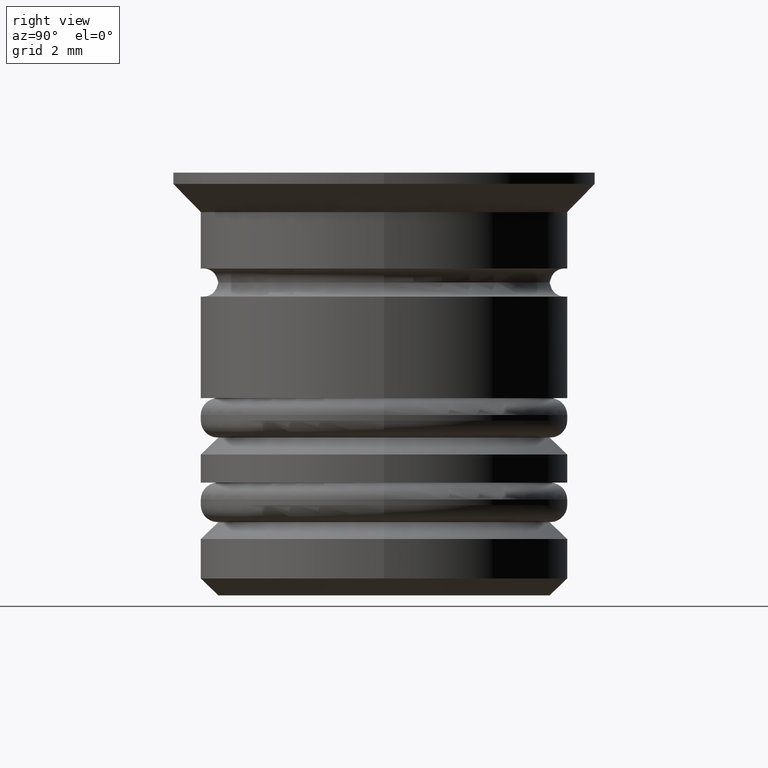
[diagram: clean part render]
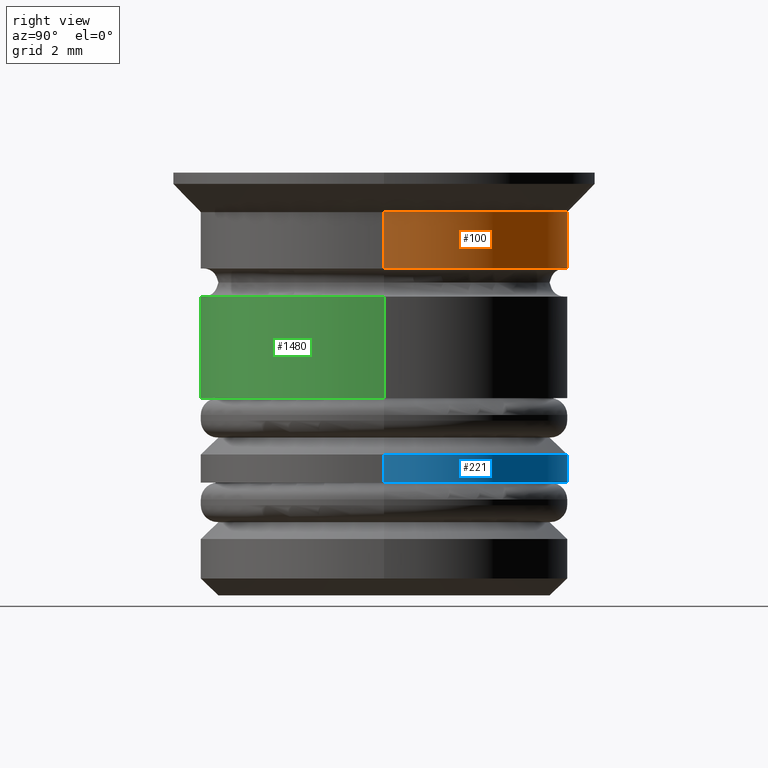
[diagram: same view with three faces highlighted in distinct colors, each labeled with its STEP entity id]
A machine part, right view with three faces highlighted in distinct colors.
Their STEP definitions:

[orange] entity #100 — the highlighted cylindrical surface (partial cylindrical patch) has radius 3.25 mm, axis along (-0, -0, 1).
#8 = DIRECTION ( 'NONE',  ( 1.000000000000000000, 0.000000000000000000, 0.000000000000000000 ) ) ;
#10 = VERTEX_POINT ( 'NONE', #1406 ) ;
#63 = CARTESIAN_POINT ( 'NONE',  ( 3.249999999999999112, 0.000000000000000000, 0.000000000000000000 ) ) ;
#84 = AXIS2_PLACEMENT_3D ( 'NONE', #1748, #1328, #194 ) ;
#85 = ORIENTED_EDGE ( 'NONE', *, *, #1826, .F. ) ;
#100 = ADVANCED_FACE ( 'NONE', ( #231 ), #200, .T. ) ;
#137 = CARTESIAN_POINT ( 'NONE',  ( -3.249999999999999112, 3.980102097228896752E-16, 0.000000000000000000 ) ) ;
#141 = DIRECTION ( 'NONE',  ( -0.000000000000000000, -0.000000000000000000, 1.000000000000000000 ) ) ;
#194 = DIRECTION ( 'NONE',  ( 1.000000000000000000, 0.000000000000000000, 0.000000000000000000 ) ) ;
#196 = LINE ( 'NONE', #63, #750 ) ;
#200 = CYLINDRICAL_SURFACE ( 'NONE', #84, 3.249999999999999112 ) ;
#231 = FACE_OUTER_BOUND ( 'NONE', #1262, .T. ) ;
#403 = CARTESIAN_POINT ( 'NONE',  ( 3.249999999999999112, 0.000000000000000000, -0.6999999999999999556 ) ) ;
#498 = CARTESIAN_POINT ( 'NONE',  ( 0.000000000000000000, 0.000000000000000000, -0.6999999999999999556 ) ) ;
#519 = DIRECTION ( 'NONE',  ( 1.000000000000000000, 0.000000000000000000, 0.000000000000000000 ) ) ;
#537 = VECTOR ( 'NONE', #701, 1000.000000000000000 ) ;
#619 = DIRECTION ( 'NONE',  ( -0.000000000000000000, -0.000000000000000000, 1.000000000000000000 ) ) ;
#643 = CARTESIAN_POINT ( 'NONE',  ( 3.249999999999999112, 0.000000000000000000, -1.700000000000000178 ) ) ;
#701 = DIRECTION ( 'NONE',  ( -0.000000000000000000, -0.000000000000000000, 1.000000000000000000 ) ) ;
#736 = ORIENTED_EDGE ( 'NONE', *, *, #1693, .T. ) ;
#750 = VECTOR ( 'NONE', #619, 1000.000000000000000 ) ;
#838 = CIRCLE ( 'NONE', #1207, 3.249999999999999112 ) ;
#877 = VERTEX_POINT ( 'NONE', #403 ) ;
#944 = CARTESIAN_POINT ( 'NONE',  ( -3.249999999999999112, 3.980102097228896752E-16, -0.6999999999999999556 ) ) ;
#1035 = EDGE_CURVE ( 'NONE', #1568, #10, #838, .T. ) ;
#1079 = DIRECTION ( 'NONE',  ( -0.000000000000000000, -0.000000000000000000, 1.000000000000000000 ) ) ;
#1207 = AXIS2_PLACEMENT_3D ( 'NONE', #1535, #141, #8 ) ;
#1262 = EDGE_LOOP ( 'NONE', ( #1750, #736, #1531, #85 ) ) ;
#1284 = EDGE_CURVE ( 'NONE', #877, #1593, #1794, .T. ) ;
#1328 = DIRECTION ( 'NONE',  ( -0.000000000000000000, -0.000000000000000000, 1.000000000000000000 ) ) ;
#1406 = CARTESIAN_POINT ( 'NONE',  ( -3.249999999999999112, 3.980102097228896752E-16, -1.700000000000000178 ) ) ;
#1531 = ORIENTED_EDGE ( 'NONE', *, *, #1284, .F. ) ;
#1535 = CARTESIAN_POINT ( 'NONE',  ( 0.000000000000000000, 0.000000000000000000, -1.700000000000000178 ) ) ;
#1568 = VERTEX_POINT ( 'NONE', #643 ) ;
#1593 = VERTEX_POINT ( 'NONE', #944 ) ;
#1597 = AXIS2_PLACEMENT_3D ( 'NONE', #498, #1079, #519 ) ;
#1655 = LINE ( 'NONE', #137, #537 ) ;
#1693 = EDGE_CURVE ( 'NONE', #10, #1593, #1655, .T. ) ;
#1748 = CARTESIAN_POINT ( 'NONE',  ( 0.000000000000000000, 0.000000000000000000, 0.000000000000000000 ) ) ;
#1750 = ORIENTED_EDGE ( 'NONE', *, *, #1035, .T. ) ;
#1794 = CIRCLE ( 'NONE', #1597, 3.249999999999999112 ) ;
#1826 = EDGE_CURVE ( 'NONE', #1568, #877, #196, .T. ) ;

[blue] entity #221 — the highlighted cylindrical surface (partial cylindrical patch) has radius 3.25 mm, axis along (-0, -0, 1).
#14 = VERTEX_POINT ( 'NONE', #1561 ) ;
#28 = EDGE_CURVE ( 'NONE', #1112, #665, #1695, .T. ) ;
#32 = DIRECTION ( 'NONE',  ( 0.000000000000000000, 0.000000000000000000, -1.000000000000000000 ) ) ;
#158 = DIRECTION ( 'NONE',  ( -0.000000000000000000, -0.000000000000000000, 1.000000000000000000 ) ) ;
#221 = ADVANCED_FACE ( 'NONE', ( #807 ), #943, .T. ) ;
#223 = ORIENTED_EDGE ( 'NONE', *, *, #681, .T. ) ;
#359 = CIRCLE ( 'NONE', #1620, 3.250000000000000444 ) ;
#376 = CARTESIAN_POINT ( 'NONE',  ( 3.250000000000000444, 0.000000000000000000, -5.000000000000002665 ) ) ;
#421 = VERTEX_POINT ( 'NONE', #376 ) ;
#483 = DIRECTION ( 'NONE',  ( -0.000000000000000000, -0.000000000000000000, 1.000000000000000000 ) ) ;
#541 = EDGE_CURVE ( 'NONE', #665, #421, #359, .T. ) ;
#546 = CARTESIAN_POINT ( 'NONE',  ( 0.000000000000000000, 0.000000000000000000, -5.000000000000002665 ) ) ;
#618 = DIRECTION ( 'NONE',  ( -0.000000000000000000, -0.000000000000000000, 1.000000000000000000 ) ) ;
#625 = CARTESIAN_POINT ( 'NONE',  ( 3.250000000000000444, 0.000000000000000000, 0.000000000000000000 ) ) ;
#635 = VECTOR ( 'NONE', #483, 1000.000000000000000 ) ;
#665 = VERTEX_POINT ( 'NONE', #729 ) ;
#681 = EDGE_CURVE ( 'NONE', #14, #1112, #921, .T. ) ;
#719 = ORIENTED_EDGE ( 'NONE', *, *, #28, .T. ) ;
#729 = CARTESIAN_POINT ( 'NONE',  ( -3.250000000000000444, 3.980102097228898231E-16, -5.000000000000002665 ) ) ;
#767 = CARTESIAN_POINT ( 'NONE',  ( -3.250000000000000444, 3.980102097228898231E-16, -5.499999999999999112 ) ) ;
#807 = FACE_OUTER_BOUND ( 'NONE', #1579, .T. ) ;
#811 = AXIS2_PLACEMENT_3D ( 'NONE', #1219, #1770, #1776 ) ;
#919 = CARTESIAN_POINT ( 'NONE',  ( 0.000000000000000000, 0.000000000000000000, -5.499999999999999112 ) ) ;
#921 = CIRCLE ( 'NONE', #1510, 3.250000000000000444 ) ;
#943 = CYLINDRICAL_SURFACE ( 'NONE', #811, 3.250000000000000444 ) ;
#1059 = DIRECTION ( 'NONE',  ( 1.000000000000000000, 0.000000000000000000, 0.000000000000000000 ) ) ;
#1112 = VERTEX_POINT ( 'NONE', #767 ) ;
#1166 = CARTESIAN_POINT ( 'NONE',  ( -3.250000000000000444, 3.980102097228898231E-16, 0.000000000000000000 ) ) ;
#1183 = VECTOR ( 'NONE', #158, 1000.000000000000000 ) ;
#1219 = CARTESIAN_POINT ( 'NONE',  ( 0.000000000000000000, 0.000000000000000000, 0.000000000000000000 ) ) ;
#1424 = DIRECTION ( 'NONE',  ( 1.000000000000000000, 0.000000000000000000, 0.000000000000000000 ) ) ;
#1457 = ORIENTED_EDGE ( 'NONE', *, *, #541, .T. ) ;
#1510 = AXIS2_PLACEMENT_3D ( 'NONE', #919, #618, #1059 ) ;
#1558 = ORIENTED_EDGE ( 'NONE', *, *, #1631, .F. ) ;
#1561 = CARTESIAN_POINT ( 'NONE',  ( 3.250000000000000444, 0.000000000000000000, -5.499999999999999112 ) ) ;
#1579 = EDGE_LOOP ( 'NONE', ( #223, #719, #1457, #1558 ) ) ;
#1620 = AXIS2_PLACEMENT_3D ( 'NONE', #546, #32, #1424 ) ;
#1631 = EDGE_CURVE ( 'NONE', #14, #421, #1747, .T. ) ;
#1695 = LINE ( 'NONE', #1166, #1183 ) ;
#1747 = LINE ( 'NONE', #625, #635 ) ;
#1770 = DIRECTION ( 'NONE',  ( -0.000000000000000000, -0.000000000000000000, 1.000000000000000000 ) ) ;
#1776 = DIRECTION ( 'NONE',  ( 1.000000000000000000, 0.000000000000000000, 0.000000000000000000 ) ) ;

[green] entity #1480 — the highlighted cylindrical surface (partial cylindrical patch) has radius 3.25 mm, axis along (-0, -0, 1).
#75 = DIRECTION ( 'NONE',  ( -0.000000000000000000, -0.000000000000000000, 1.000000000000000000 ) ) ;
#130 = LINE ( 'NONE', #1698, #781 ) ;
#328 = AXIS2_PLACEMENT_3D ( 'NONE', #1413, #1004, #1689 ) ;
#331 = CYLINDRICAL_SURFACE ( 'NONE', #1185, 3.249999999999999556 ) ;
#334 = CARTESIAN_POINT ( 'NONE',  ( -3.249999999999999112, 3.980102097228896752E-16, -2.199999999999999734 ) ) ;
#341 = CARTESIAN_POINT ( 'NONE',  ( 0.000000000000000000, 0.000000000000000000, 0.000000000000000000 ) ) ;
#361 = AXIS2_PLACEMENT_3D ( 'NONE', #1619, #75, #1204 ) ;
#559 = CIRCLE ( 'NONE', #361, 3.250000000000000000 ) ;
#584 = VERTEX_POINT ( 'NONE', #334 ) ;
#599 = CIRCLE ( 'NONE', #328, 3.249999999999999112 ) ;
#752 = CARTESIAN_POINT ( 'NONE',  ( 3.249999999999999112, 0.000000000000000000, -2.199999999999999734 ) ) ;
#781 = VECTOR ( 'NONE', #839, 1000.000000000000000 ) ;
#793 = VERTEX_POINT ( 'NONE', #752 ) ;
#839 = DIRECTION ( 'NONE',  ( -0.000000000000000000, -0.000000000000000000, 1.000000000000000000 ) ) ;
#901 = DIRECTION ( 'NONE',  ( 1.000000000000000000, 0.000000000000000000, 0.000000000000000000 ) ) ;
#1004 = DIRECTION ( 'NONE',  ( -0.000000000000000000, -0.000000000000000000, 1.000000000000000000 ) ) ;
#1016 = EDGE_CURVE ( 'NONE', #1609, #1425, #559, .T. ) ;
#1055 = FACE_OUTER_BOUND ( 'NONE', #1430, .T. ) ;
#1067 = VECTOR ( 'NONE', #1605, 1000.000000000000000 ) ;
#1185 = AXIS2_PLACEMENT_3D ( 'NONE', #341, #1320, #901 ) ;
#1204 = DIRECTION ( 'NONE',  ( 1.000000000000000000, 0.000000000000000000, 0.000000000000000000 ) ) ;
#1320 = DIRECTION ( 'NONE',  ( -0.000000000000000000, -0.000000000000000000, 1.000000000000000000 ) ) ;
#1339 = EDGE_CURVE ( 'NONE', #1609, #584, #130, .T. ) ;
#1382 = ORIENTED_EDGE ( 'NONE', *, *, #1454, .T. ) ;
#1383 = EDGE_CURVE ( 'NONE', #584, #793, #599, .T. ) ;
#1408 = ORIENTED_EDGE ( 'NONE', *, *, #1016, .T. ) ;
#1413 = CARTESIAN_POINT ( 'NONE',  ( 0.000000000000000000, 0.000000000000000000, -2.199999999999999734 ) ) ;
#1425 = VERTEX_POINT ( 'NONE', #1429 ) ;
#1429 = CARTESIAN_POINT ( 'NONE',  ( 3.250000000000000000, 0.000000000000000000, -4.000000000000000000 ) ) ;
#1430 = EDGE_LOOP ( 'NONE', ( #1516, #1408, #1382, #1702 ) ) ;
#1449 = LINE ( 'NONE', #1585, #1067 ) ;
#1454 = EDGE_CURVE ( 'NONE', #1425, #793, #1449, .T. ) ;
#1480 = ADVANCED_FACE ( 'NONE', ( #1055 ), #331, .T. ) ;
#1516 = ORIENTED_EDGE ( 'NONE', *, *, #1339, .F. ) ;
#1560 = CARTESIAN_POINT ( 'NONE',  ( -3.250000000000000444, 3.980102097228898231E-16, -4.000000000000000000 ) ) ;
#1585 = CARTESIAN_POINT ( 'NONE',  ( 3.249999999999999556, 0.000000000000000000, 0.000000000000000000 ) ) ;
#1605 = DIRECTION ( 'NONE',  ( -0.000000000000000000, -0.000000000000000000, 1.000000000000000000 ) ) ;
#1609 = VERTEX_POINT ( 'NONE', #1560 ) ;
#1619 = CARTESIAN_POINT ( 'NONE',  ( 0.000000000000000000, 0.000000000000000000, -4.000000000000000000 ) ) ;
#1689 = DIRECTION ( 'NONE',  ( 1.000000000000000000, 0.000000000000000000, 0.000000000000000000 ) ) ;
#1698 = CARTESIAN_POINT ( 'NONE',  ( -3.249999999999999556, 3.980102097228897245E-16, 0.000000000000000000 ) ) ;
#1702 = ORIENTED_EDGE ( 'NONE', *, *, #1383, .F. ) ;